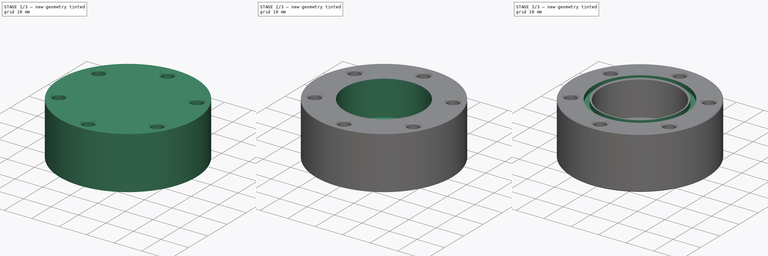
[diagram: build sequence overview — one tinted view per stage of 3, left to right]
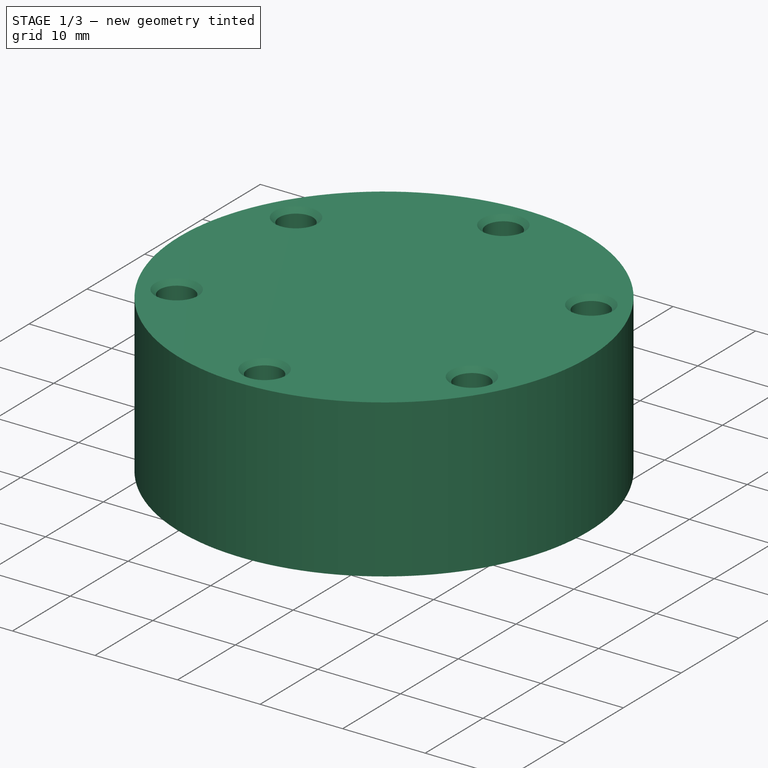
[diagram: stage 1 of 3 — iso view after this stage's code; geometry added in this stage tinted green]
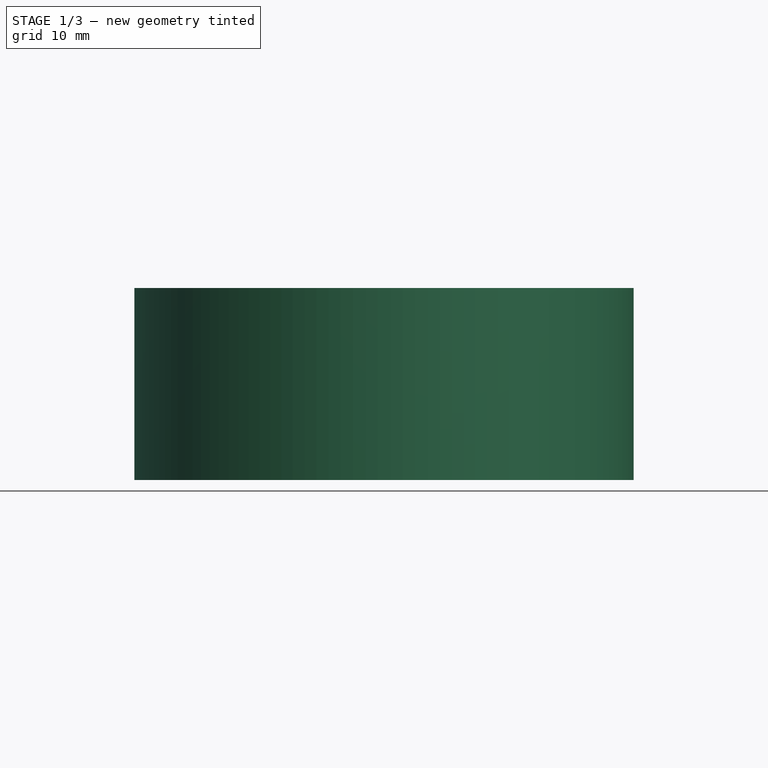
[diagram: stage 1 of 3 — front view after this stage's code; geometry added in this stage tinted green]
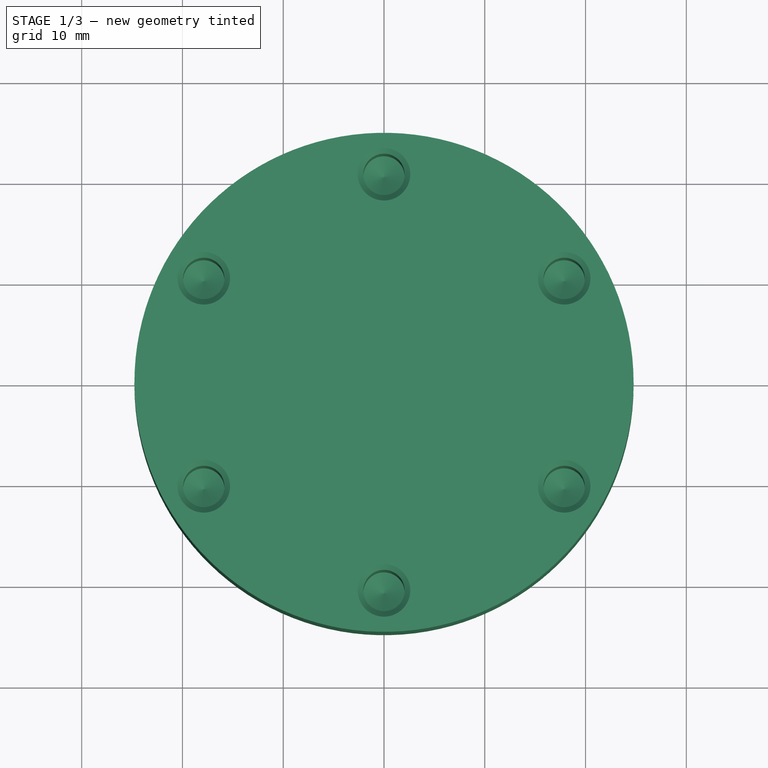
[diagram: stage 1 of 3 — top view after this stage's code; geometry added in this stage tinted green]
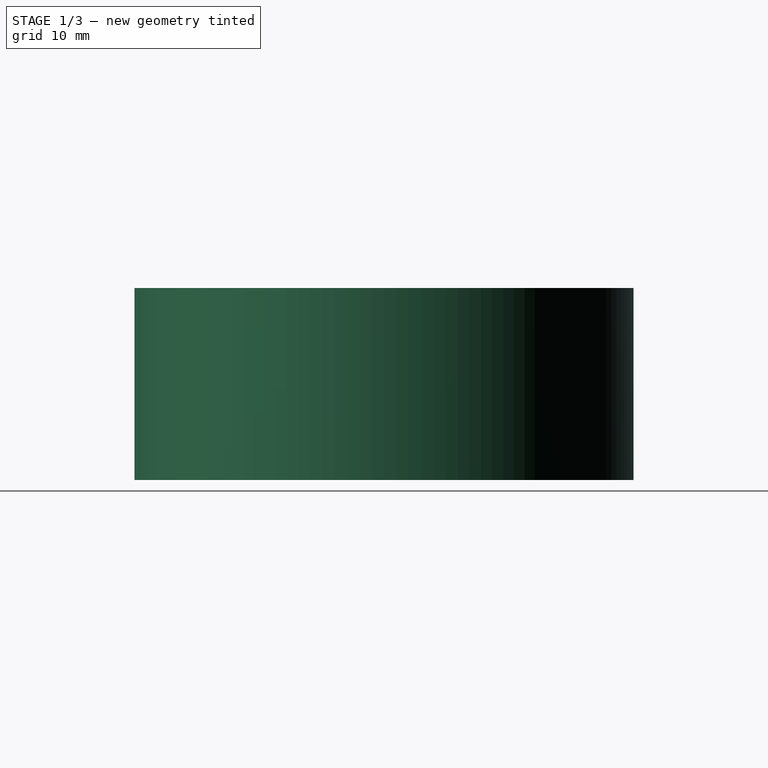
[diagram: stage 1 of 3 — right view after this stage's code; geometry added in this stage tinted green]
FCSTD DOCUMENT  (FreeCAD 0.19R24291 (Git))
Label: TITAN-3M
License: All rights reserved
LicenseURL: http://en.wikipedia.org/wiki/All_rights_reserved
objects: Sketcher::SketchObject×3, PartDesign::Pocket×2, PartDesign::AdditiveCylinder×1, PartDesign::Hole×1, PartDesign::Chamfer×1, PartDesign::Body×1
note: 14 computed .brp shape members not serialized (recipe doc carries the construction recipe); baked Part::Feature solids carry a one-line shape summary decoded from their .brp

FEATURE [PartDesign::AdditiveCylinder] Cylinder
  Angle = 360
  AttacherType = Attacher::AttachEngine3D
  Height = 19.05
  Radius = 24.765
  Refine = true
  expr: Radius = 1.95" / 2
FEATURE [Sketcher::SketchObject] Sketch
  FullyConstrained = true
  MapMode = 5
  Placement = pos=(0,0,19.05) rot=(0,0,1;0rad)
  Support = -> [Cylinder]
  sketch-geometry (13):
    g0: LineSegment StartX=0 StartY=-20.6502 StartZ=0 EndX=17.8836 EndY=-10.3251 EndZ=0
    g1: LineSegment StartX=17.8836 StartY=-10.3251 StartZ=0 EndX=17.8836 EndY=10.3251 EndZ=0
    g2: LineSegment StartX=17.8836 StartY=10.3251 StartZ=0 EndX=3.6e-15 EndY=20.6502 EndZ=0
    g3: LineSegment StartX=3.6e-15 StartY=20.6502 StartZ=0 EndX=-17.8836 EndY=10.3251 EndZ=0
    g4: LineSegment StartX=-17.8836 StartY=10.3251 StartZ=0 EndX=-17.8836 EndY=-10.3251 EndZ=0
    g5: LineSegment StartX=-17.8836 StartY=-10.3251 StartZ=0 EndX=0 EndY=-20.6502 EndZ=0
    g6: Circle CenterX=0 CenterY=0 CenterZ=0 NormalX=0 NormalY=0 NormalZ=1 AngleXU=0 Radius=20.6502
    g7: Circle CenterX=3.6e-15 CenterY=20.6502 CenterZ=0 NormalX=0 NormalY=0 NormalZ=1 AngleXU=0 Radius=2.413
    g8: Circle CenterX=17.8836 CenterY=10.3251 CenterZ=0 NormalX=0 NormalY=0 NormalZ=1 AngleXU=0 Radius=2.413
    g9: Circle CenterX=17.8836 CenterY=-10.3251 CenterZ=0 NormalX=0 NormalY=0 NormalZ=1 AngleXU=0 Radius=2.413
    g10: Circle CenterX=0 CenterY=-20.6502 CenterZ=0 NormalX=0 NormalY=0 NormalZ=1 AngleXU=0 Radius=2.413
    g11: Circle CenterX=-17.8836 CenterY=-10.3251 CenterZ=0 NormalX=0 NormalY=0 NormalZ=1 AngleXU=0 Radius=2.413
    g12: Circle CenterX=-17.8836 CenterY=10.3251 CenterZ=0 NormalX=0 NormalY=0 NormalZ=1 AngleXU=0 Radius=2.413
  constraints (28):
    c: Coincident(g0,g1)
    c: Coincident(g1,g2)
    c: Coincident(g2,g3)
    c: Coincident(g3,g4)
    c: Coincident(g4,g5)
    c: Coincident(g5,g0)
    c: Equal(g0, g1-g5) x5
    c: PointOnObject(g0,g6)
    c: PointOnObject(g1,g6)
    c: PointOnObject(g2,g6)
    c: PointOnObject(g3,g6)
    c: PointOnObject(g4,g6)
    c: PointOnObject(g5,g6)
    c: Coincident(g6,g-1)
    c: PointOnObject(g5,g-2)
    c: Diameter(g6) = 41.3004
    c: Coincident(g7,g2)
    c: Coincident(g8,g1)
    c: Coincident(g9,g0)
    c: Coincident(g10,g0)
    c: Coincident(g11,g4)
    c: Coincident(g12,g3)
    c: Equal(g11,g12)
    c: Equal(g12,g7)
    c: Equal(g7,g8)
    c: Equal(g8,g9)
    c: Equal(g9,g10)
    c: Diameter(g12) = 4.826
FEATURE [PartDesign::Hole] Hole
  BaseFeature = -> Cylinder
  Depth = 14.986
  DepthType = 0
  Diameter = 4.1
  DrillForDepth = false
  DrillPoint = 1
  DrillPointAngle = 118
  HoleCutCountersinkAngle = 90
  HoleCutCustomValues = false
  HoleCutDepth = 0
  HoleCutDiameter = 5.207
  HoleCutType = 2
  ModelActualThread = false
  Profile = -> Sketch
  Refine = true
  Tapered = false
  TaperedAngle = 90
  ThreadAngle = 60
  ThreadClass = 1
  ThreadCutOffInner = 0.085953
  ThreadCutOffOuter = 0.171906
  ThreadDirection = 0
  ThreadFit = 0
  ThreadPitch = 0.794
  ThreadSize = 8
  ThreadType = 4
  Threaded = true
  expr: HoleCutDiameter = 0.205"
  expr: Depth = 0.375in + 0.215"
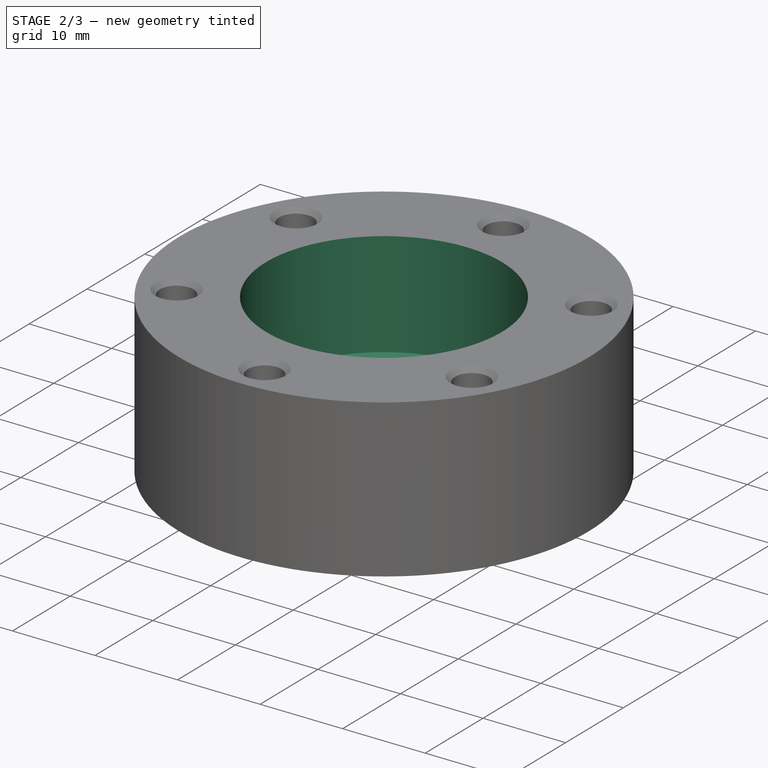
[diagram: stage 2 of 3 — iso view after this stage's code; geometry added in this stage tinted green]
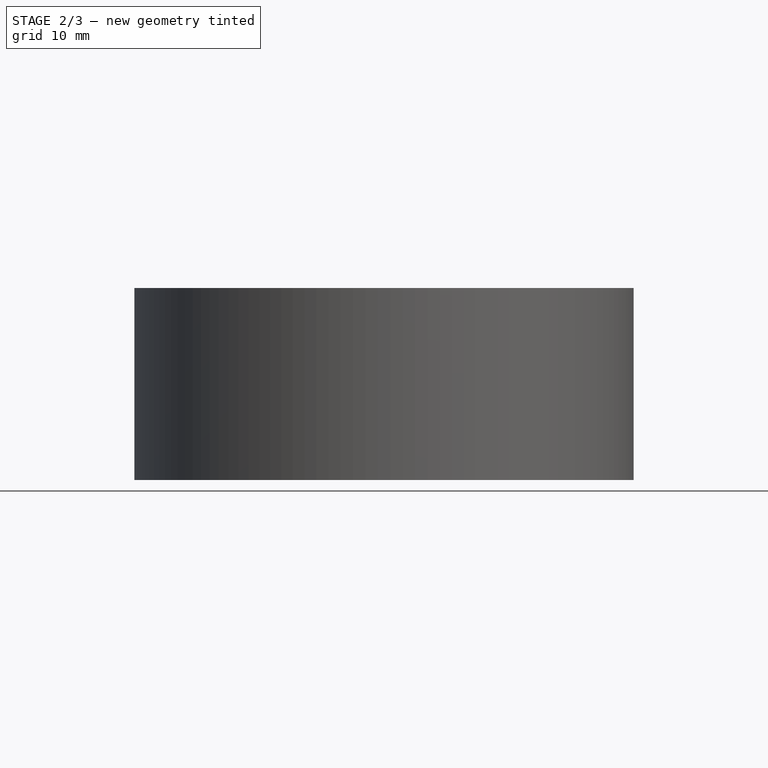
[diagram: stage 2 of 3 — front view after this stage's code; geometry added in this stage tinted green]
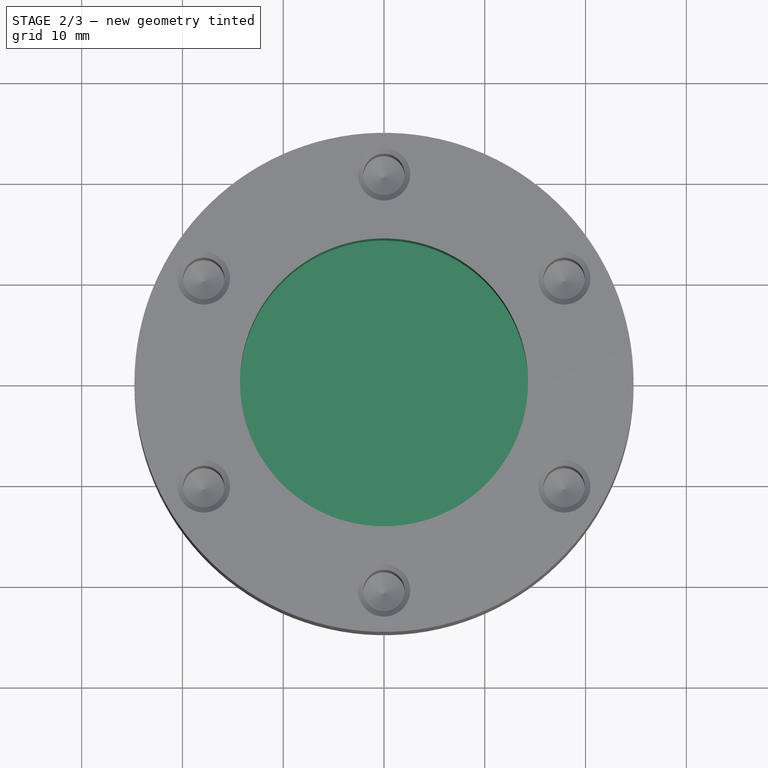
[diagram: stage 2 of 3 — top view after this stage's code; geometry added in this stage tinted green]
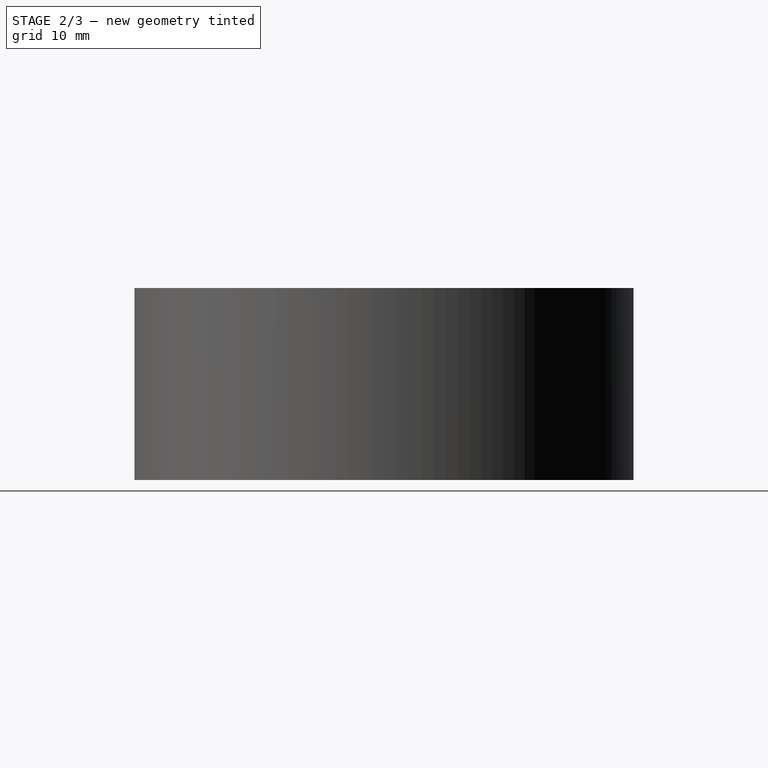
[diagram: stage 2 of 3 — right view after this stage's code; geometry added in this stage tinted green]
FEATURE [Sketcher::SketchObject] Sketch001
  FullyConstrained = true
  MapMode = 5
  Placement = pos=(0,0,19.05) rot=(0,0,1;0rad)
  Support = -> [Hole]
  sketch-geometry (1):
    g0: Circle CenterX=0 CenterY=0 CenterZ=0 NormalX=0 NormalY=0 NormalZ=1 AngleXU=0 Radius=14.2875
  constraints (2):
    c: Coincident(g0,g-1)
    c: Diameter(g0) = 28.575
FEATURE [PartDesign::Pocket] Pocket
  BaseFeature = -> Hole
  Length = 12.7
  Length2 = 99.9998
  Profile = -> Sketch001
  Refine = true
  Type = 0
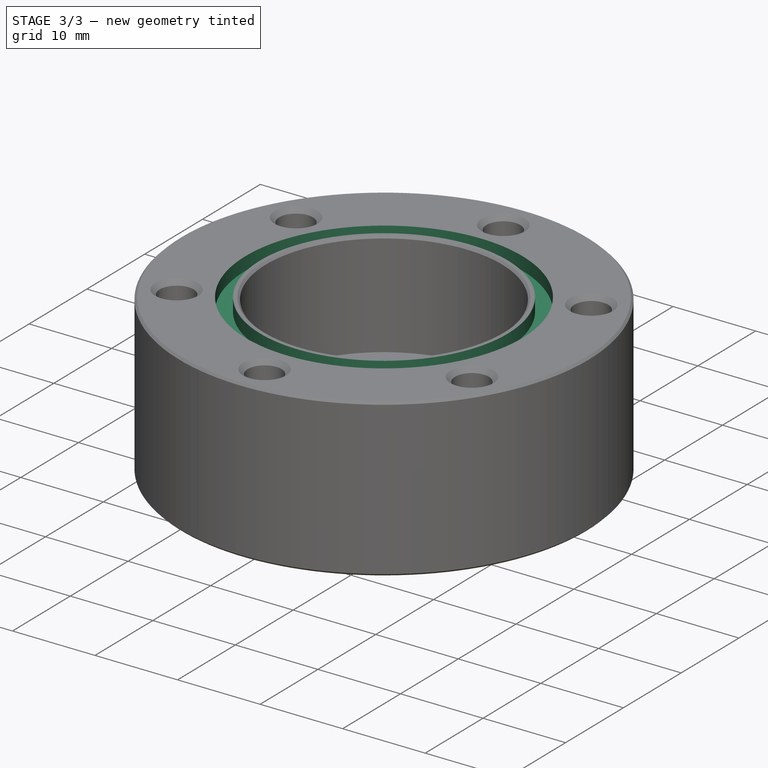
[diagram: stage 3 of 3 — iso view after this stage's code; geometry added in this stage tinted green]
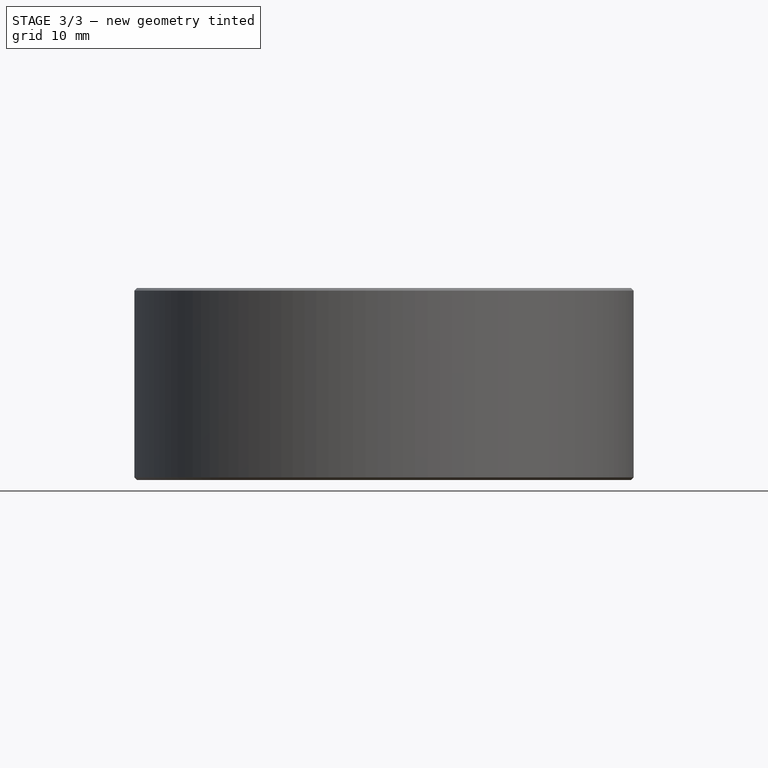
[diagram: stage 3 of 3 — front view after this stage's code; geometry added in this stage tinted green]
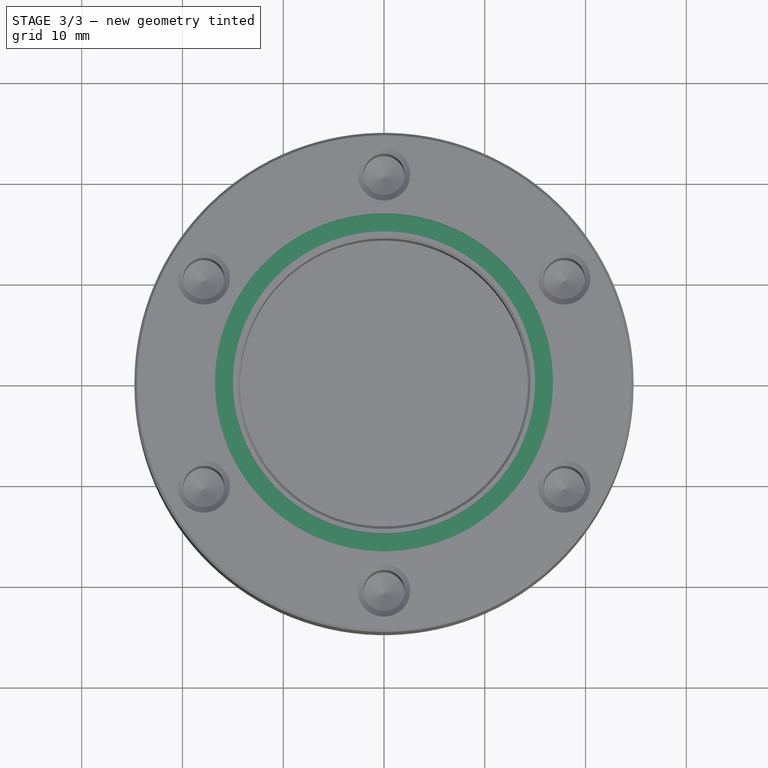
[diagram: stage 3 of 3 — top view after this stage's code; geometry added in this stage tinted green]
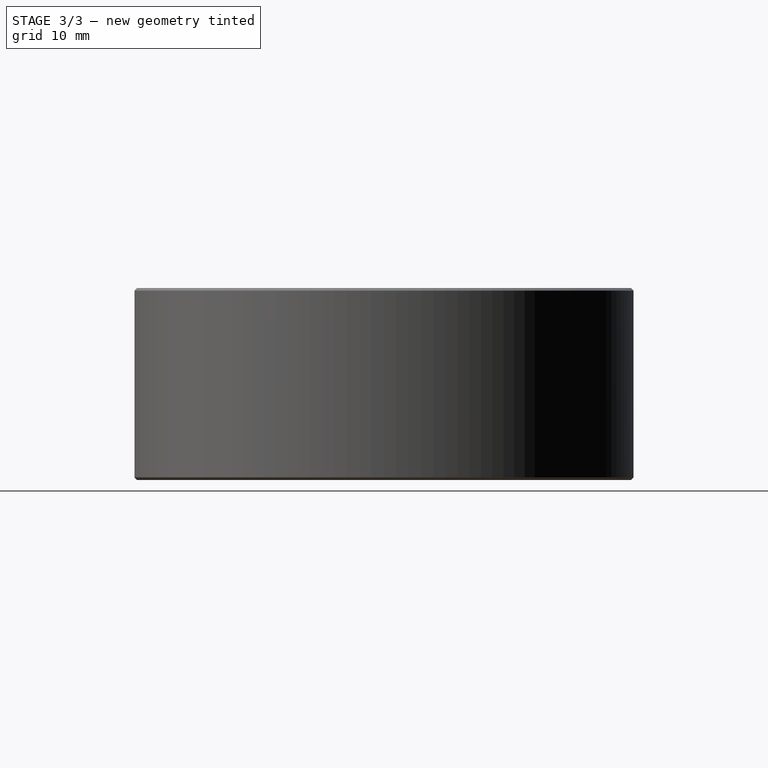
[diagram: stage 3 of 3 — right view after this stage's code; geometry added in this stage tinted green]
FEATURE [Sketcher::SketchObject] Sketch002
  FullyConstrained = true
  MapMode = 5
  Placement = pos=(0,0,19.05) rot=(0,0,1;0rad)
  Support = -> [Pocket]
  sketch-geometry (2):
    g0: Circle CenterX=0 CenterY=0 CenterZ=0 NormalX=0 NormalY=0 NormalZ=1 AngleXU=0 Radius=14.986
    g1: Circle CenterX=0 CenterY=0 CenterZ=0 NormalX=0 NormalY=0 NormalZ=1 AngleXU=0 Radius=16.764
  constraints (4):
    c: Coincident(g0,g-1)
    c: Coincident(g1,g0)
    c: Diameter(g0) = 29.972
    c: Diameter(g1) = 33.528
FEATURE [PartDesign::Pocket] Pocket001
  BaseFeature = -> Pocket
  Length = 1.6002
  Length2 = 99.9998
  Profile = -> Sketch002
  Refine = true
  Type = 0
FEATURE [PartDesign::Chamfer] Chamfer
  Angle = 45
  Base = -> Pocket001 [Edge52,Edge1,Edge3]
  BaseFeature = -> Pocket001
  ChamferType = 0
  FlipDirection = false
  Refine = true
  Size = 0.254
  Size2 = 1
  SupportTransform = false
FEATURE [PartDesign::Body] Body
  Group = -> [Cylinder,Sketch,Hole,Sketch001,Pocket,Sketch002,Pocket001,Chamfer]
  Origin = -> Origin
  Tip = -> Chamfer
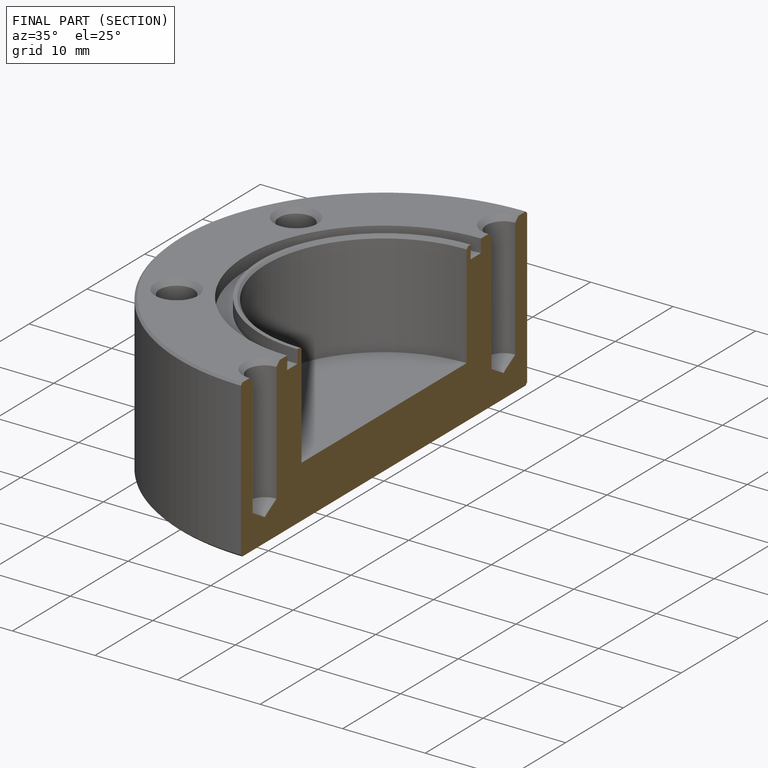
[diagram: finished part — half-section view (interior)]
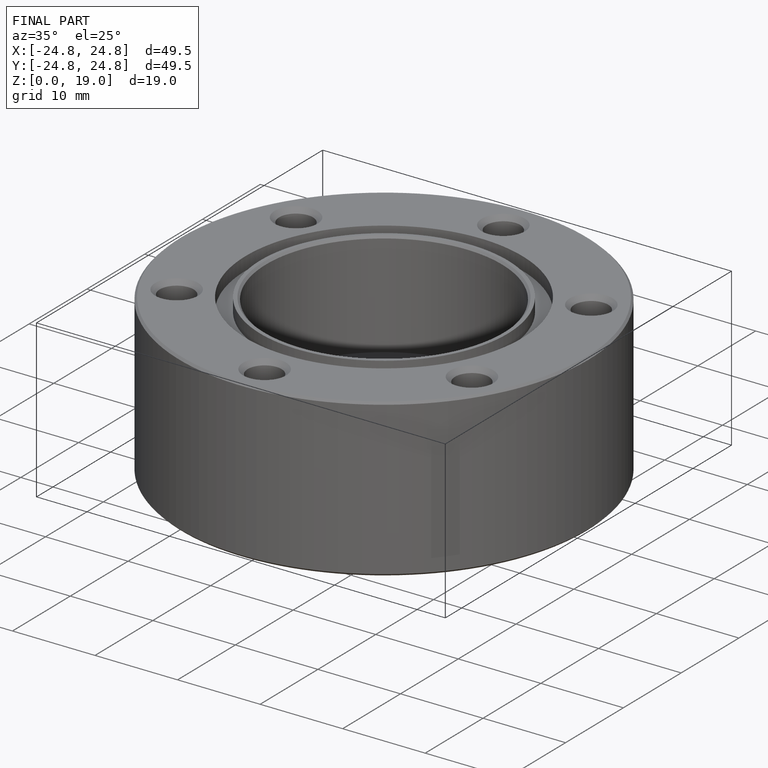
[diagram: finished part — iso view with bounding-box wireframe]
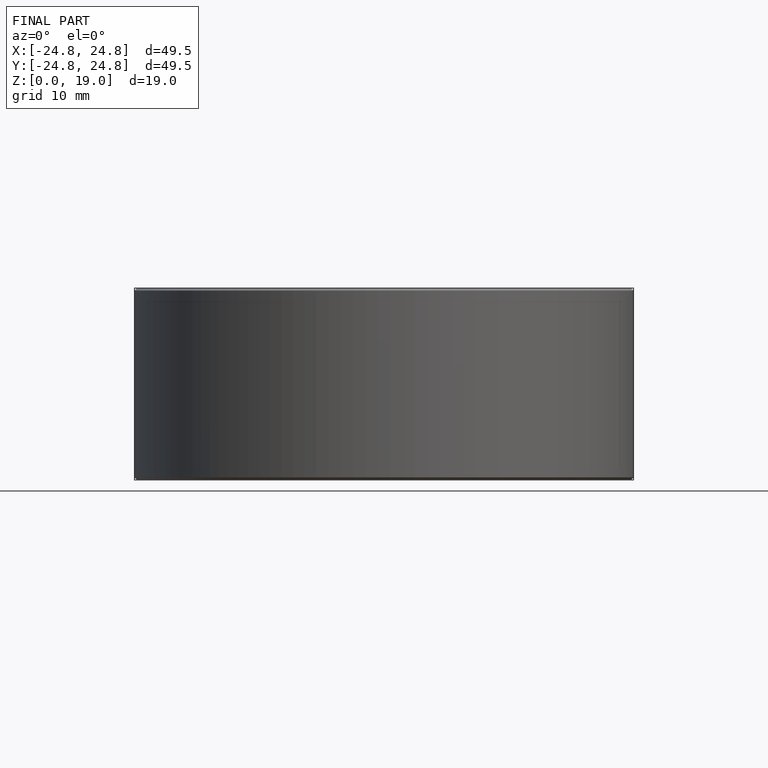
[diagram: finished part — front view with bounding-box wireframe]
